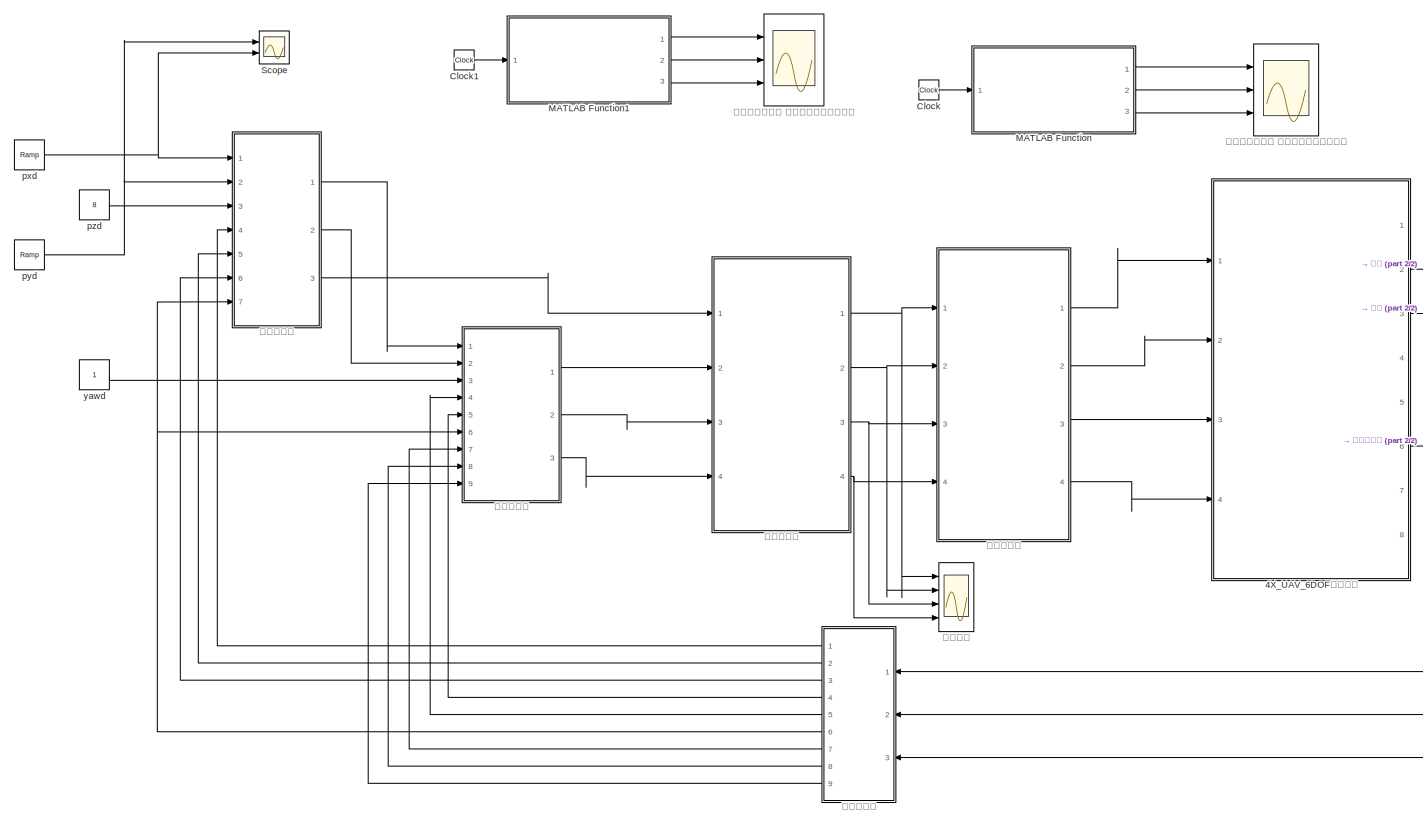
[diagram: root canvas - part 1/2, most of the canvas]
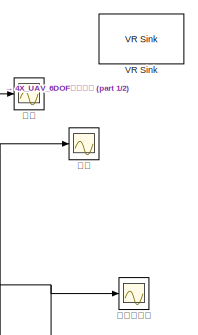
[diagram: root canvas - part 2/2, middle right region]
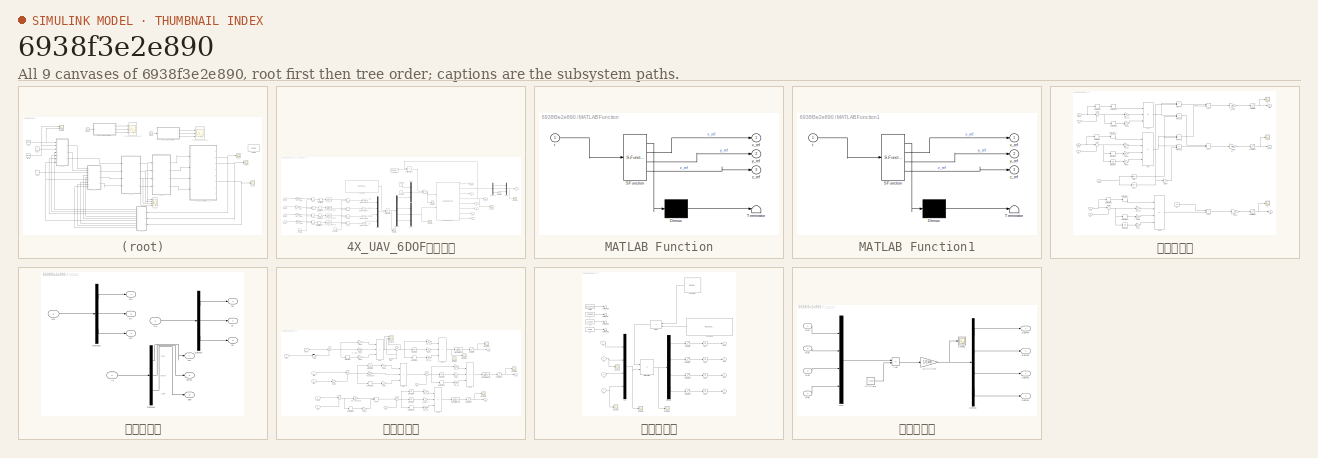
[diagram: thumbnail index - all 9 canvases of the model, root first then tree order]
MODEL slx_6938f3e2e890
KIND model
CONFIG AbsTol = auto
CONFIG EnableMultiTasking = off
CONFIG FixedStep = 0.01
CONFIG MaxStep = auto
CONFIG MinStep = auto
CONFIG RelTol = 1e-3
CONFIG SampleTimeConstraint = Unconstrained
CONFIG SolverName = FixedStepAuto
CONFIG StartTime = 0.0
CONFIG StopTime = 10.0
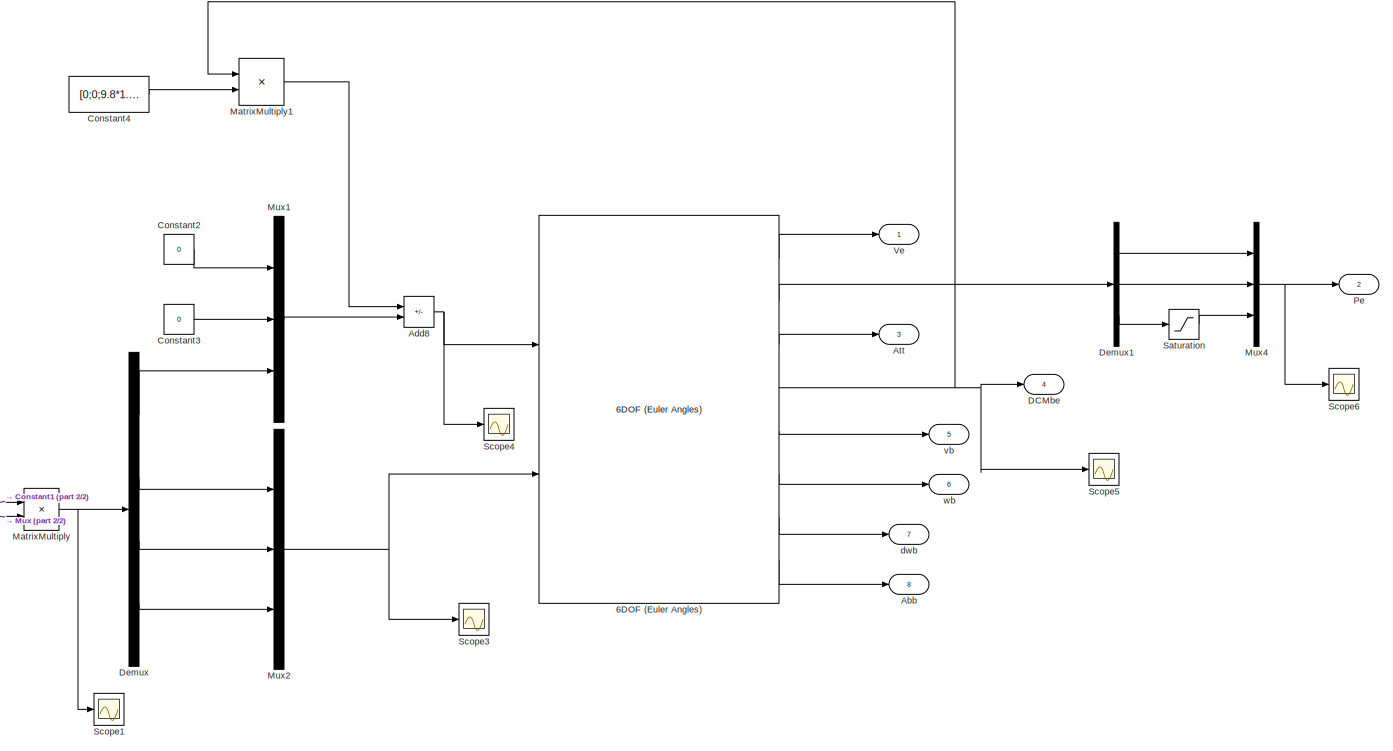
[diagram: 4X_UAV_6DOF模型解算 - part 1/2, right side, full height]
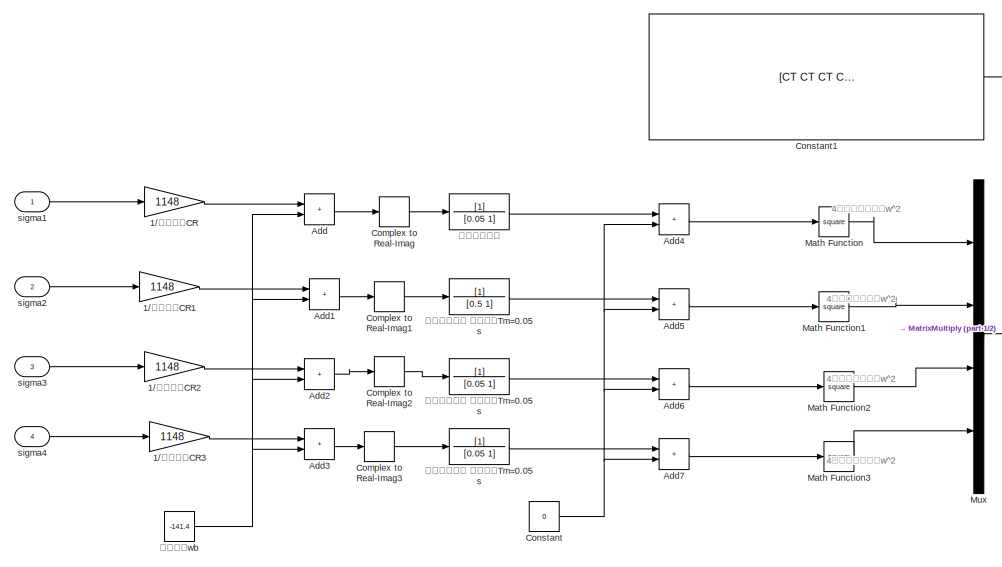
[diagram: 4X_UAV_6DOF模型解算 - part 2/2, middle left region]
BLOCK [SubSystem] 4X_UAV_6DOF模型解算
  Ports = [4, 8]
  RequestExecContextInheritance = off
BLOCK [Gain] 4X_UAV_6DOF模型解算/1//油门参数CR
  Gain = 1148
BLOCK [Gain] 4X_UAV_6DOF模型解算/1//油门参数CR1
  Gain = 1148
BLOCK [Gain] 4X_UAV_6DOF模型解算/1//油门参数CR2
  Gain = 1148
BLOCK [Gain] 4X_UAV_6DOF模型解算/1//油门参数CR3
  Gain = 1148
BLOCK [Reference] 4X_UAV_6DOF模型解算/6DOF (Euler Angles)  REF=shared6dof/6DOF (Euler Angles)
  Ports = [2, 8]
  SourceBlock = shared6dof/6DOF (Euler Angles)
  SourceProductBaseCode = AE,PW,DR,MT,VE
  SourceType = 6DOF EoM (Body Axis)
BLOCK [Outport] 4X_UAV_6DOF模型解算/Abb
  Port = 8
BLOCK [Sum] 4X_UAV_6DOF模型解算/Add
  AccumDataTypeStr = double
  IconShape = rectangular
  OutDataTypeStr = double
  Ports = [2, 1]
BLOCK [Sum] 4X_UAV_6DOF模型解算/Add1
  AccumDataTypeStr = double
  IconShape = rectangular
  OutDataTypeStr = double
  Ports = [2, 1]
BLOCK [Sum] 4X_UAV_6DOF模型解算/Add2
  AccumDataTypeStr = double
  IconShape = rectangular
  OutDataTypeStr = double
  Ports = [2, 1]
BLOCK [Sum] 4X_UAV_6DOF模型解算/Add3
  AccumDataTypeStr = double
  IconShape = rectangular
  OutDataTypeStr = double
  Ports = [2, 1]
BLOCK [Sum] 4X_UAV_6DOF模型解算/Add4
  IconShape = rectangular
  Ports = [2, 1]
BLOCK [Sum] 4X_UAV_6DOF模型解算/Add5
  IconShape = rectangular
  Ports = [2, 1]
BLOCK [Sum] 4X_UAV_6DOF模型解算/Add6
  IconShape = rectangular
  Ports = [2, 1]
BLOCK [Sum] 4X_UAV_6DOF模型解算/Add7
  IconShape = rectangular
  Ports = [2, 1]
BLOCK [Sum] 4X_UAV_6DOF模型解算/Add8
  IconShape = rectangular
  Inputs = -+
  Ports = [2, 1]
BLOCK [Outport] 4X_UAV_6DOF模型解算/Att
  Port = 3
BLOCK [ComplexToRealImag] 4X_UAV_6DOF模型解算/Complex to Real-Imag
  Output = Real
  Ports = [1, 1]
BLOCK [ComplexToRealImag] 4X_UAV_6DOF模型解算/Complex to Real-Imag1
  Output = Real
  Ports = [1, 1]
BLOCK [ComplexToRealImag] 4X_UAV_6DOF模型解算/Complex to Real-Imag2
  Output = Real
  Ports = [1, 1]
BLOCK [ComplexToRealImag] 4X_UAV_6DOF模型解算/Complex to Real-Imag3
  Output = Real
  Ports = [1, 1]
BLOCK [Constant] 4X_UAV_6DOF模型解算/Constant
  Value = 0
BLOCK [Constant] 4X_UAV_6DOF模型解算/Constant1
  Value = [CT CT CT CT;sqrt22*d*CT sqrt22*d*CT -sqrt22*d*CT -sqrt22*d*CT;sqrt22*d*CT -sqrt22*d*CT -sqrt22*d*CT sqrt22*d*CT;CM -CM CM -CM]
BLOCK [Constant] 4X_UAV_6DOF模型解算/Constant2
  Value = 0
BLOCK [Constant] 4X_UAV_6DOF模型解算/Constant3
  Value = 0
BLOCK [Constant] 4X_UAV_6DOF模型解算/Constant4
  Value = [0;0;9.8*1.4]
BLOCK [Outport] 4X_UAV_6DOF模型解算/DCMbe
  Port = 4
BLOCK [Demux] 4X_UAV_6DOF模型解算/Demux
  Ports = [1, 4]
BLOCK [Demux] 4X_UAV_6DOF模型解算/Demux1
  Outputs = 3
  Ports = [1, 3]
BLOCK [Math] 4X_UAV_6DOF模型解算/Math Function
  Operator = square
  Ports = [1, 1]
BLOCK [Math] 4X_UAV_6DOF模型解算/Math Function1
  Operator = square
  Ports = [1, 1]
BLOCK [Math] 4X_UAV_6DOF模型解算/Math Function2
  Operator = square
  Ports = [1, 1]
BLOCK [Math] 4X_UAV_6DOF模型解算/Math Function3
  Operator = square
  Ports = [1, 1]
BLOCK [Product] 4X_UAV_6DOF模型解算/MatrixMultiply
  Multiplication = Matrix(*)
  Ports = [2, 1]
BLOCK [Product] 4X_UAV_6DOF模型解算/MatrixMultiply1
  Multiplication = Matrix(*)
  Ports = [2, 1]
BLOCK [Mux] 4X_UAV_6DOF模型解算/Mux
  DisplayOption = bar
  Ports = [4, 1]
BLOCK [Mux] 4X_UAV_6DOF模型解算/Mux1
  DisplayOption = bar
  Inputs = 3
  Ports = [3, 1]
BLOCK [Mux] 4X_UAV_6DOF模型解算/Mux2
  DisplayOption = bar
  Inputs = 3
  Ports = [3, 1]
BLOCK [Mux] 4X_UAV_6DOF模型解算/Mux4
  DisplayOption = bar
  Inputs = 3
  Ports = [3, 1]
BLOCK [Outport] 4X_UAV_6DOF模型解算/Pe
  Port = 2
BLOCK [Saturate] 4X_UAV_6DOF模型解算/Saturation
BLOCK [Scope] 4X_UAV_6DOF模型解算/Scope1
  Floating = off
  NumInputPorts = 1
  Ports = [1]
  ScopeSpecificationString = Simulink.scopes.TimeScopeBlockCfg('CurrentConfiguration', extmgr.ConfigurationSet(extmgr.Configuration('Core','General UI',true),extmgr.Configuration('Core','Source UI',true),extmgr.Configuration('Sources','WiredSimulink',true,'DataLoggingVariableName','ScopeData13'),extmgr.Configuration('Visuals','Time Domain',true,'SerializedDisplays',{struct('MinYLimReal','-0.15001','MaxYLimReal','0.99855','YLa...<+1419ch>
BLOCK [Scope] 4X_UAV_6DOF模型解算/Scope3
  Floating = off
  NumInputPorts = 1
  Ports = [1]
  ScopeSpecificationString = Simulink.scopes.TimeScopeBlockCfg('CurrentConfiguration', extmgr.ConfigurationSet(extmgr.Configuration('Core','General UI',true),extmgr.Configuration('Core','Source UI',true),extmgr.Configuration('Sources','WiredSimulink',true,'DataLoggingVariableName','ScopeData14'),extmgr.Configuration('Visuals','Time Domain',true,'SerializedDisplays',{struct('MinYLimReal','-0.03954','MaxYLimReal','0.00439','YLa...<+1387ch>
BLOCK [Scope] 4X_UAV_6DOF模型解算/Scope4
  Floating = off
  NumInputPorts = 1
  Ports = [1]
  ScopeSpecificationString = Simulink.scopes.TimeScopeBlockCfg('CurrentConfiguration', extmgr.ConfigurationSet(extmgr.Configuration('Core','General UI',true),extmgr.Configuration('Core','Source UI',true),extmgr.Configuration('Sources','WiredSimulink',true,'DataLoggingVariableName','ScopeData15'),extmgr.Configuration('Visuals','Time Domain',true,'SerializedDisplays',{struct('MinYLimReal','-15.88455','MaxYLimReal','12.38895','Y...<+1390ch>
BLOCK [Scope] 4X_UAV_6DOF模型解算/Scope5
  Floating = off
  NumInputPorts = 1
  Ports = [1]
  ScopeSpecificationString = Simulink.scopes.TimeScopeBlockCfg('CurrentConfiguration', extmgr.ConfigurationSet(extmgr.Configuration('Core','General UI',true),extmgr.Configuration('Core','Source UI',true),extmgr.Configuration('Sources','WiredSimulink',true,'DataLoggingVariableName','ScopeData16'),extmgr.Configuration('Visuals','Time Domain',true,'SerializedDisplays',{struct('MinYLimReal','-0.90902','MaxYLimReal','1.21211','YLa...<+1395ch>
BLOCK [Scope] 4X_UAV_6DOF模型解算/Scope6
  Floating = off
  NumInputPorts = 1
  Ports = [1]
  ScopeSpecificationString = Simulink.scopes.TimeScopeBlockCfg('CurrentConfiguration', extmgr.ConfigurationSet(extmgr.Configuration('Core','General UI',true),extmgr.Configuration('Core','Source UI',true),extmgr.Configuration('Sources','WiredSimulink',true,'DataLoggingVariableName','ScopeData17'),extmgr.Configuration('Visuals','Time Domain',true,'SerializedDisplays',{struct('MinYLimReal','-13.04621','MaxYLimReal','14.22227','Y...<+1402ch>
BLOCK [Outport] 4X_UAV_6DOF模型解算/Ve
BLOCK [Outport] 4X_UAV_6DOF模型解算/dwb
  Port = 7
BLOCK [Inport] 4X_UAV_6DOF模型解算/sigma1
  SignalType = complex
BLOCK [Inport] 4X_UAV_6DOF模型解算/sigma2
  Port = 2
  SignalType = complex
BLOCK [Inport] 4X_UAV_6DOF模型解算/sigma3
  Port = 3
  SignalType = complex
BLOCK [Inport] 4X_UAV_6DOF模型解算/sigma4
  Port = 4
  SignalType = complex
BLOCK [Outport] 4X_UAV_6DOF模型解算/vb
  Port = 5
BLOCK [Outport] 4X_UAV_6DOF模型解算/wb
  Port = 6
BLOCK [Constant] 4X_UAV_6DOF模型解算/油门参数wb
  Value = -141.4
BLOCK [TransferFcn] 4X_UAV_6DOF模型解算/电机动态响应
  Denominator = [0.05 1]
BLOCK [TransferFcn] 4X_UAV_6DOF模型解算/电机动态响应 时间常数Tm=0.05s
  Denominator = [0.05 1]
BLOCK [TransferFcn] 4X_UAV_6DOF模型解算/电机动态响应 时间常数Tm=0.05s 
  Denominator = [0.05 1]
BLOCK [Clock] Clock
BLOCK [Clock] Clock1
BLOCK [SubSystem] MATLAB Function
  ErrorFcn = Stateflow.Translate.translate
  PermitHierarchicalResolution = ExplicitOnly
  Ports = [1, 3]
  RequestExecContextInheritance = off
  SFBlockType = MATLAB Function
  TreatAsAtomicUnit = on
BLOCK [Demux] MATLAB Function/ Demux 
  Outputs = 1
  Ports = [1, 1]
BLOCK [S-Function] MATLAB Function/ SFunction 
  EnableBusSupport = on
  FunctionName = sf_sfun
  PortCounts = [1 4]
  Ports = [1, 4]
  SFcnIsStateOwnerBlock = off
  SFunctionDeploymentMode = off
  Tag = Stateflow S-Function 2
BLOCK [Terminator] MATLAB Function/ Terminator 
BLOCK [Inport] MATLAB Function/t
BLOCK [Outport] MATLAB Function/x_ref
BLOCK [Outport] MATLAB Function/y_ref
  Port = 2
BLOCK [Outport] MATLAB Function/z_ref
  Port = 3
BLOCK [SubSystem] MATLAB Function1
  ErrorFcn = Stateflow.Translate.translate
  PermitHierarchicalResolution = ExplicitOnly
  Ports = [1, 3]
  RequestExecContextInheritance = off
  SFBlockType = MATLAB Function
  TreatAsAtomicUnit = on
BLOCK [Demux] MATLAB Function1/ Demux 
  Outputs = 1
  Ports = [1, 1]
BLOCK [S-Function] MATLAB Function1/ SFunction 
  EnableBusSupport = on
  FunctionName = sf_sfun
  PortCounts = [1 4]
  Ports = [1, 4]
  SFcnIsStateOwnerBlock = off
  SFunctionDeploymentMode = off
  Tag = Stateflow S-Function 1
BLOCK [Terminator] MATLAB Function1/ Terminator 
BLOCK [Inport] MATLAB Function1/t
BLOCK [Outport] MATLAB Function1/x_ref
BLOCK [Outport] MATLAB Function1/y_ref
  Port = 2
BLOCK [Outport] MATLAB Function1/z_ref
  Port = 3
BLOCK [Scope] Scope
  Floating = off
  NumInputPorts = 2
  Ports = [2]
  ScopeSpecificationString = Simulink.scopes.TimeScopeBlockCfg('CurrentConfiguration', extmgr.ConfigurationSet(extmgr.Configuration('Core','General UI',true),extmgr.Configuration('Core','Source UI',true),extmgr.Configuration('Sources','WiredSimulink',true,'DataLoggingVariableName','ScopeData1'),extmgr.Configuration('Visuals','Time Domain',true,'SerializedDisplays',{struct('MinYLimReal','-5.00000','MaxYLimReal','45.00000','YLa...<+1407ch>
BLOCK [Reference] VR Sink  REF=vrlib/VR Sink
  InstantiateOnLoad = on
  Ports = []
  SourceBlock = vrlib/VR Sink
  SourceProductBaseCode = SL
  SourceType = Virtual Reality Sink
BLOCK [Reference] pxd  REF=simulink/Sources/Ramp
  Ports = [0, 1]
  SourceBlock = simulink/Sources/Ramp
  SourceProductBaseCode = SL
  SourceType = Ramp
BLOCK [Reference] pyd  REF=simulink/Sources/Ramp
  Ports = [0, 1]
  SourceBlock = simulink/Sources/Ramp
  SourceProductBaseCode = SL
  SourceType = Ramp
BLOCK [Constant] pzd
  Value = 8
BLOCK [Constant] yawd
BLOCK [Scope] 仿真一：多旋翼 以螺旋上升的方式起飞
  Floating = off
  NumInputPorts = 3
  Ports = [3]
  ScopeSpecificationString = Simulink.scopes.TimeScopeBlockCfg('CurrentConfiguration', extmgr.ConfigurationSet(extmgr.Configuration('Core','General UI',true),extmgr.Configuration('Core','Source UI',true),extmgr.Configuration('Sources','WiredSimulink',true,'DataLoggingVariableName','ScopeData2'),extmgr.Configuration('Visuals','Time Domain',true,'SerializedDisplays',{struct('MinYLimReal','-6.24999','MaxYLimReal','6.25','YLabelR...<+1451ch>
BLOCK [Scope] 仿真二：多旋翼 以圆形上升的方式起飞
  Floating = off
  NumInputPorts = 3
  Ports = [3]
  ScopeSpecificationString = Simulink.scopes.TimeScopeBlockCfg('CurrentConfiguration', extmgr.ConfigurationSet(extmgr.Configuration('Core','General UI',true),extmgr.Configuration('Core','Source UI',true),extmgr.Configuration('Sources','WiredSimulink',true,'DataLoggingVariableName','ScopeData3'),extmgr.Configuration('Visuals','Time Domain',true,'SerializedDisplays',{struct('MinYLimReal','-8.12457','MaxYLimReal','23.12495','YLa...<+9862ch>
BLOCK [Scope] 位置
  Floating = off
  NumInputPorts = 1
  Ports = [1]
  ScopeSpecificationString = Simulink.scopes.TimeScopeBlockCfg('CurrentConfiguration', extmgr.ConfigurationSet(extmgr.Configuration('Core','General UI',true),extmgr.Configuration('Core','Source UI',true),extmgr.Configuration('Sources','WiredSimulink',true,'DataLoggingVariableName','ScopeData18'),extmgr.Configuration('Visuals','Time Domain',true,'SerializedDisplays',{struct('MinYLimReal','-6.3696','MaxYLimReal','52.32644','YLa...<+1461ch>
BLOCK [SubSystem] 位置控制器
  Ports = [7, 3]
  RequestExecContextInheritance = off
BLOCK [Sum] 位置控制器/Add
  IconShape = rectangular
  Inputs = -+++
  Ports = [4, 1]
BLOCK [Sum] 位置控制器/Add1
  IconShape = rectangular
  Inputs = -++
  Ports = [3, 1]
BLOCK [Sum] 位置控制器/Add2
  IconShape = rectangular
  Ports = [2, 1]
BLOCK [Sum] 位置控制器/Add3
  IconShape = rectangular
  Ports = [2, 1]
BLOCK [Sum] 位置控制器/Add4
  IconShape = rectangular
  Inputs = -+++
  Ports = [4, 1]
BLOCK [Sum] 位置控制器/Add5
  IconShape = rectangular
  Ports = [2, 1]
BLOCK [Trigonometry] 位置控制器/Cos
  Operator = cos
  Ports = [1, 1]
BLOCK [Derivative] 位置控制器/Derivative
BLOCK [Derivative] 位置控制器/Derivative1
BLOCK [Derivative] 位置控制器/Derivative2
BLOCK [Derivative] 位置控制器/Derivative3
BLOCK [Derivative] 位置控制器/Derivative4
BLOCK [Derivative] 位置控制器/Derivative5
BLOCK [Derivative] 位置控制器/Derivative6
BLOCK [Derivative] 位置控制器/Derivative7
BLOCK [Derivative] 位置控制器/Derivative8
BLOCK [Outport] 位置控制器/Fd
  Port = 3
BLOCK [Gain] 位置控制器/Gain
  Gain = 1/9.8
BLOCK [Gain] 位置控制器/Gain1
  Gain = 4
BLOCK [Gain] 位置控制器/Gain2
  Gain = 0
BLOCK [Gain] 位置控制器/Gain3
  Gain = 4
BLOCK [Gain] 位置控制器/Gain4
  Gain = -1
BLOCK [Gain] 位置控制器/Gain5
  Gain = 1/9.8
BLOCK [Gain] 位置控制器/Gain6
  Gain = 10
BLOCK [Integrator] 位置控制器/Integrator
  Ports = [1, 1]
BLOCK [Integrator] 位置控制器/Integrator1
  Ports = [1, 1]
BLOCK [Gain] 位置控制器/Ki_pz
  Gain = 0.3
BLOCK [Gain] 位置控制器/Kp_px
  Gain = 0.3
BLOCK [Gain] 位置控制器/Kp_py
  Gain = 0.3
BLOCK [Gain] 位置控制器/Kp_pz
  Gain = 5
BLOCK [Product] 位置控制器/Product
  Ports = [2, 1]
BLOCK [Product] 位置控制器/Product1
  Ports = [2, 1]
BLOCK [Product] 位置控制器/Product2
  Ports = [2, 1]
BLOCK [Product] 位置控制器/Product3
  Ports = [2, 1]
BLOCK [Saturate] 位置控制器/Saturation
BLOCK [Saturate] 位置控制器/Saturation1
BLOCK [Saturate] 位置控制器/Saturation2
BLOCK [Trigonometry] 位置控制器/Sin
  Ports = [1, 1]
BLOCK [Sum] 位置控制器/Sum
  Inputs = |+-
  Ports = [2, 1]
BLOCK [Sum] 位置控制器/Sum1
  Inputs = |+-
  Ports = [2, 1]
BLOCK [Sum] 位置控制器/Sum2
  Inputs = |+-
  Ports = [2, 1]
BLOCK [Constant] 位置控制器/g
  Value = 9.8
BLOCK [Gain] 位置控制器/mass
  Gain = 1.4
BLOCK [Outport] 位置控制器/pitchd
BLOCK [Inport] 位置控制器/px
  Port = 4
BLOCK [Inport] 位置控制器/pxd
BLOCK [Inport] 位置控制器/py
  Port = 5
BLOCK [Inport] 位置控制器/pyd
  Port = 2
BLOCK [Inport] 位置控制器/pz
  Port = 6
BLOCK [Inport] 位置控制器/pzd
  Port = 3
BLOCK [Outport] 位置控制器/rolld
  Port = 2
BLOCK [Scope] 位置控制器/x
  Floating = off
  NumInputPorts = 1
  Ports = [1]
  ScopeSpecificationString = Simulink.scopes.TimeScopeBlockCfg('CurrentConfiguration', extmgr.ConfigurationSet(extmgr.Configuration('Core','General UI',true),extmgr.Configuration('Core','Source UI',true),extmgr.Configuration('Sources','WiredSimulink',true),extmgr.Configuration('Visuals','Time Domain',true,'SerializedDisplays',{struct('MinYLimReal','-1.00000','MaxYLimReal','1.00000','YLabelReal','','MinYLimMag','0.00000','MaxY...<+1365ch>
BLOCK [Scope] 位置控制器/y
  Floating = off
  NumInputPorts = 1
  Ports = [1]
  ScopeSpecificationString = Simulink.scopes.TimeScopeBlockCfg('CurrentConfiguration', extmgr.ConfigurationSet(extmgr.Configuration('Core','General UI',true),extmgr.Configuration('Core','Source UI',true),extmgr.Configuration('Sources','WiredSimulink',true,'DataLoggingVariableName','ScopeData1'),extmgr.Configuration('Visuals','Time Domain',true,'SerializedDisplays',{struct('MinYLimReal','-1.00000','MaxYLimReal','1.00000','YLab...<+1407ch>
BLOCK [Inport] 位置控制器/yaw
  Port = 7
BLOCK [Scope] 位置控制器/z
  Floating = off
  NumInputPorts = 1
  Ports = [1]
  ScopeSpecificationString = Simulink.scopes.TimeScopeBlockCfg('CurrentConfiguration', extmgr.ConfigurationSet(extmgr.Configuration('Core','General UI',true),extmgr.Configuration('Core','Source UI',true),extmgr.Configuration('Sources','WiredSimulink',true,'DataLoggingVariableName','ScopeData2'),extmgr.Configuration('Visuals','Time Domain',true,'SerializedDisplays',{struct('MinYLimReal','0.4','MaxYLimReal','0.6','YLabelReal','...<+1370ch>
BLOCK [SubSystem] 信号分解器
  Ports = [3, 9]
  RequestExecContextInheritance = off
BLOCK [Inport] 信号分解器/Alt
  Port = 2
BLOCK [Demux] 信号分解器/Demux
  Outputs = 3
  Ports = [1, 3]
BLOCK [Demux] 信号分解器/Demux1
  Outputs = 3
  Ports = [1, 3]
BLOCK [Demux] 信号分解器/Demux2
  Outputs = 3
  Ports = [1, 3]
BLOCK [Inport] 信号分解器/Pe
BLOCK [Outport] 信号分解器/pitch
  Port = 5
BLOCK [Outport] 信号分解器/px
BLOCK [Outport] 信号分解器/py
  Port = 2
BLOCK [Outport] 信号分解器/pz
  Port = 3
BLOCK [Outport] 信号分解器/roll
  Port = 4
BLOCK [Inport] 信号分解器/wb
  Port = 3
BLOCK [Outport] 信号分解器/wx
  Port = 7
BLOCK [Outport] 信号分解器/wy
  Port = 8
BLOCK [Outport] 信号分解器/wz
  Port = 9
BLOCK [Outport] 信号分解器/yaw
  Port = 6
BLOCK [Scope] 姿态
  Floating = off
  NumInputPorts = 1
  Ports = [1]
  ScopeSpecificationString = Simulink.scopes.TimeScopeBlockCfg('CurrentConfiguration', extmgr.ConfigurationSet(extmgr.Configuration('Core','General UI',true),extmgr.Configuration('Core','Source UI',true),extmgr.Configuration('Sources','WiredSimulink',true,'DataLoggingVariableName','ScopeData19'),extmgr.Configuration('Visuals','Time Domain',true,'SerializedDisplays',{struct('MinYLimReal','-3.92312','MaxYLimReal','3.92429','YLa...<+1423ch>
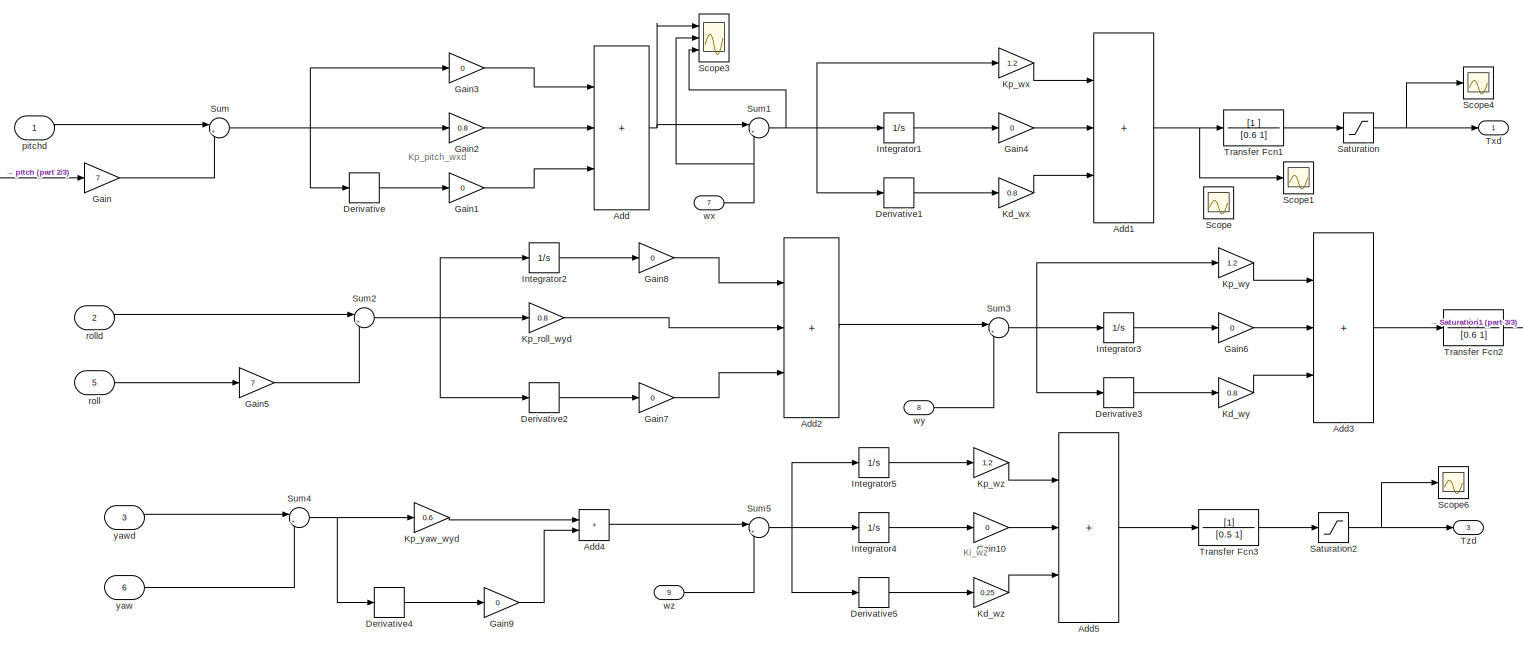
[diagram: 姿态控制器 - part 1/3, most of the canvas]
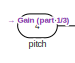
[diagram: 姿态控制器 - part 2/3, top left region]
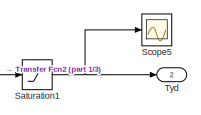
[diagram: 姿态控制器 - part 3/3, middle right region]
BLOCK [SubSystem] 姿态控制器
  Ports = [9, 3]
  RequestExecContextInheritance = off
BLOCK [Sum] 姿态控制器/Add
  IconShape = rectangular
  Inputs = +++
  Ports = [3, 1]
BLOCK [Sum] 姿态控制器/Add1
  IconShape = rectangular
  Inputs = +++
  Ports = [3, 1]
BLOCK [Sum] 姿态控制器/Add2
  IconShape = rectangular
  Inputs = +++
  Ports = [3, 1]
BLOCK [Sum] 姿态控制器/Add3
  IconShape = rectangular
  Inputs = +++
  Ports = [3, 1]
BLOCK [Sum] 姿态控制器/Add4
  IconShape = rectangular
  Ports = [2, 1]
BLOCK [Sum] 姿态控制器/Add5
  IconShape = rectangular
  Inputs = +++
  Ports = [3, 1]
BLOCK [Derivative] 姿态控制器/Derivative
BLOCK [Derivative] 姿态控制器/Derivative1
BLOCK [Derivative] 姿态控制器/Derivative2
BLOCK [Derivative] 姿态控制器/Derivative3
BLOCK [Derivative] 姿态控制器/Derivative4
BLOCK [Derivative] 姿态控制器/Derivative5
BLOCK [Gain] 姿态控制器/Gain
  Gain = 7
BLOCK [Gain] 姿态控制器/Gain1
  Gain = 0
BLOCK [Gain] 姿态控制器/Gain10
  Gain = 0
BLOCK [Gain] 姿态控制器/Gain2
  Gain = 0.8
BLOCK [Gain] 姿态控制器/Gain3
  Gain = 0
BLOCK [Gain] 姿态控制器/Gain4
  Gain = 0
BLOCK [Gain] 姿态控制器/Gain5
  Gain = 7
BLOCK [Gain] 姿态控制器/Gain6
  Gain = 0
BLOCK [Gain] 姿态控制器/Gain7
  Gain = 0
BLOCK [Gain] 姿态控制器/Gain8
  Gain = 0
BLOCK [Gain] 姿态控制器/Gain9
  Gain = 0
BLOCK [Integrator] 姿态控制器/Integrator1
  Ports = [1, 1]
BLOCK [Integrator] 姿态控制器/Integrator2
  Ports = [1, 1]
BLOCK [Integrator] 姿态控制器/Integrator3
  Ports = [1, 1]
BLOCK [Integrator] 姿态控制器/Integrator4
  Ports = [1, 1]
BLOCK [Integrator] 姿态控制器/Integrator5
  Ports = [1, 1]
BLOCK [Gain] 姿态控制器/Kd_wx
  Gain = 0.8
BLOCK [Gain] 姿态控制器/Kd_wy
  Gain = 0.8
BLOCK [Gain] 姿态控制器/Kd_wz
  Gain = 0.25
BLOCK [Gain] 姿态控制器/Kp_roll_wyd
  Gain = 0.8
BLOCK [Gain] 姿态控制器/Kp_wx
  Gain = 1.2
BLOCK [Gain] 姿态控制器/Kp_wy
  Gain = 1.2
BLOCK [Gain] 姿态控制器/Kp_wz
  Gain = 1.2
BLOCK [Gain] 姿态控制器/Kp_yaw_wyd
  Gain = 0.6
BLOCK [Saturate] 姿态控制器/Saturation
BLOCK [Saturate] 姿态控制器/Saturation1
BLOCK [Saturate] 姿态控制器/Saturation2
BLOCK [Scope] 姿态控制器/Scope
  Floating = off
  NumInputPorts = 1
  Ports = [1]
  ScopeSpecificationString = Simulink.scopes.TimeScopeBlockCfg('CurrentConfiguration', extmgr.ConfigurationSet(extmgr.Configuration('Core','General UI',true),extmgr.Configuration('Core','Source UI',true),extmgr.Configuration('Sources','WiredSimulink',true,'DataLoggingVariableName','ScopeData1'),extmgr.Configuration('Visuals','Time Domain',true),extmgr.Configuration('Tools','Plot Navigation',true),extmgr.Configuration('Tools',...<+40ch>
BLOCK [Scope] 姿态控制器/Scope1
  Floating = off
  NumInputPorts = 1
  Ports = [1]
  ScopeSpecificationString = Simulink.scopes.TimeScopeBlockCfg('CurrentConfiguration', extmgr.ConfigurationSet(extmgr.Configuration('Core','General UI',true),extmgr.Configuration('Core','Source UI',true),extmgr.Configuration('Sources','WiredSimulink',true,'DataLoggingVariableName','ScopeData2'),extmgr.Configuration('Visuals','Time Domain',true,'SerializedDisplays',{struct('MinYLimReal','-116.72208','MaxYLimReal','228.49149','...<+1377ch>
BLOCK [Scope] 姿态控制器/Scope3
  Floating = off
  NumInputPorts = 3
  Ports = [3]
  ScopeSpecificationString = Simulink.scopes.TimeScopeBlockCfg('CurrentConfiguration', extmgr.ConfigurationSet(extmgr.Configuration('Core','General UI',true),extmgr.Configuration('Core','Source UI',true),extmgr.Configuration('Sources','WiredSimulink',true,'DataLoggingVariableName','ScopeData4'),extmgr.Configuration('Visuals','Time Domain',true,'SerializedDisplays',{struct('MinYLimReal','-1.00000','MaxYLimReal','1.00000','YLab...<+1375ch>
BLOCK [Scope] 姿态控制器/Scope4
  Floating = off
  NumInputPorts = 1
  Ports = [1]
  ScopeSpecificationString = Simulink.scopes.TimeScopeBlockCfg('CurrentConfiguration', extmgr.ConfigurationSet(extmgr.Configuration('Core','General UI',true),extmgr.Configuration('Core','Source UI',true),extmgr.Configuration('Sources','WiredSimulink',true,'DataLoggingVariableName','ScopeData5'),extmgr.Configuration('Visuals','Time Domain',true,'SerializedDisplays',{struct('MinYLimReal','-1.00000','MaxYLimReal','1.00000','YLab...<+1369ch>
BLOCK [Scope] 姿态控制器/Scope5
  Floating = off
  NumInputPorts = 1
  Ports = [1]
  ScopeSpecificationString = Simulink.scopes.TimeScopeBlockCfg('CurrentConfiguration', extmgr.ConfigurationSet(extmgr.Configuration('Core','General UI',true),extmgr.Configuration('Core','Source UI',true),extmgr.Configuration('Sources','WiredSimulink',true,'DataLoggingVariableName','ScopeData6'),extmgr.Configuration('Visuals','Time Domain',true,'SerializedDisplays',{struct('MinYLimReal','-1.00000','MaxYLimReal','1.00000','YLab...<+1370ch>
BLOCK [Scope] 姿态控制器/Scope6
  Floating = off
  NumInputPorts = 1
  Ports = [1]
  ScopeSpecificationString = Simulink.scopes.TimeScopeBlockCfg('CurrentConfiguration', extmgr.ConfigurationSet(extmgr.Configuration('Core','General UI',true),extmgr.Configuration('Core','Source UI',true),extmgr.Configuration('Sources','WiredSimulink',true,'DataLoggingVariableName','ScopeData7'),extmgr.Configuration('Visuals','Time Domain',true,'SerializedDisplays',{struct('MinYLimReal','-1.00000','MaxYLimReal','1.00000','YLab...<+1370ch>
BLOCK [Sum] 姿态控制器/Sum
  Inputs = |+-
  Ports = [2, 1]
BLOCK [Sum] 姿态控制器/Sum1
  Inputs = |+-
  Ports = [2, 1]
BLOCK [Sum] 姿态控制器/Sum2
  Inputs = |+-
  Ports = [2, 1]
BLOCK [Sum] 姿态控制器/Sum3
  Inputs = |+-
  Ports = [2, 1]
BLOCK [Sum] 姿态控制器/Sum4
  Inputs = |+-
  Ports = [2, 1]
BLOCK [Sum] 姿态控制器/Sum5
  Inputs = |+-
  Ports = [2, 1]
BLOCK [TransferFcn] 姿态控制器/Transfer Fcn1
  Denominator = [0.6 1]
  Numerator = [1 ]
BLOCK [TransferFcn] 姿态控制器/Transfer Fcn2
  Denominator = [0.6 1]
BLOCK [TransferFcn] 姿态控制器/Transfer Fcn3
  Denominator = [0.5 1]
BLOCK [Outport] 姿态控制器/Txd
BLOCK [Outport] 姿态控制器/Tyd
  Port = 2
BLOCK [Outport] 姿态控制器/Tzd
  Port = 3
BLOCK [Inport] 姿态控制器/pitch
  Port = 4
BLOCK [Inport] 姿态控制器/pitchd
BLOCK [Inport] 姿态控制器/roll
  Port = 5
BLOCK [Inport] 姿态控制器/rolld
  Port = 2
BLOCK [Inport] 姿态控制器/wx
  Port = 7
BLOCK [Inport] 姿态控制器/wy
  Port = 8
BLOCK [Inport] 姿态控制器/wz
  Port = 9
BLOCK [Inport] 姿态控制器/yaw
  Port = 6
BLOCK [Inport] 姿态控制器/yawd
  Port = 3
BLOCK [SubSystem] 控制分配器
  Ports = [4, 4]
  RequestExecContextInheritance = off
BLOCK [Constant] 控制分配器/CM
  Value = 1.779e-7
BLOCK [Constant] 控制分配器/CT
  Value = 1.105e-5
BLOCK [Constant] 控制分配器/Constant
  NameLocation = top
  Value = [1 0 0 0;0 1 0 0;0 0 1 0;0 0 0 1]
BLOCK [Constant] 控制分配器/Constant1
  NameLocation = top
  Value = [CT CT CT CT;sqrt22*d*CT sqrt22*d*CT -sqrt22*d*CT -sqrt22*d*CT;sqrt22*d*CT -sqrt22*d*CT -sqrt22*d*CT sqrt22*d*CT;CM -CM CM -CM]
BLOCK [Demux] 控制分配器/Demux
  Ports = [1, 4]
BLOCK [Product] 控制分配器/Divide
  Inputs = */
  Multiplication = Matrix(*)
  NameLocation = top
  Ports = [2, 1]
BLOCK [Inport] 控制分配器/Fd
BLOCK [Product] 控制分配器/MatrixMultiply
  Multiplication = Matrix(*)
  Ports = [2, 1]
  RndMeth = Nearest
BLOCK [Mux] 控制分配器/Mux
  DisplayOption = bar
  Ports = [4, 1]
BLOCK [Saturate] 控制分配器/Saturation
BLOCK [Saturate] 控制分配器/Saturation1
BLOCK [Saturate] 控制分配器/Saturation2
BLOCK [Saturate] 控制分配器/Saturation3
BLOCK [Scope] 控制分配器/Scope1
  Floating = off
  NumInputPorts = 1
  Ports = [1]
  ScopeSpecificationString = Simulink.scopes.TimeScopeBlockCfg('CurrentConfiguration', extmgr.ConfigurationSet(extmgr.Configuration('Core','General UI',true),extmgr.Configuration('Core','Source UI',true),extmgr.Configuration('Sources','WiredSimulink',true,'DataLoggingVariableName','ScopeData9'),extmgr.Configuration('Visuals','Time Domain',true,'SerializedDisplays',{struct('MinYLimReal','-1.00000','MaxYLimReal','1.00000','YLab...<+1379ch>
BLOCK [Scope] 控制分配器/Scope3
  Floating = off
  NumInputPorts = 1
  Ports = [1]
  ScopeSpecificationString = Simulink.scopes.TimeScopeBlockCfg('CurrentConfiguration', extmgr.ConfigurationSet(extmgr.Configuration('Core','General UI',true),extmgr.Configuration('Core','Source UI',true),extmgr.Configuration('Sources','WiredSimulink',true,'DataLoggingVariableName','ScopeData10'),extmgr.Configuration('Visuals','Time Domain',true,'SerializedDisplays',{struct('MinYLimReal','-1.00000','MaxYLimReal','1.00000','YLa...<+1433ch>
BLOCK [Scope] 控制分配器/Scope4
  Floating = off
  NumInputPorts = 1
  Ports = [1]
  ScopeSpecificationString = Simulink.scopes.TimeScopeBlockCfg('CurrentConfiguration', extmgr.ConfigurationSet(extmgr.Configuration('Core','General UI',true),extmgr.Configuration('Core','Source UI',true),extmgr.Configuration('Sources','WiredSimulink',true,'DataLoggingVariableName','ScopeData11'),extmgr.Configuration('Visuals','Time Domain',true,'SerializedDisplays',{struct('MinYLimReal','-1.00000','MaxYLimReal','1.00000','YLa...<+1363ch>
BLOCK [Scope] 控制分配器/Scope5
  Floating = off
  NumInputPorts = 1
  Ports = [1]
  ScopeSpecificationString = Simulink.scopes.TimeScopeBlockCfg('CurrentConfiguration', extmgr.ConfigurationSet(extmgr.Configuration('Core','General UI',true),extmgr.Configuration('Core','Source UI',true),extmgr.Configuration('Sources','WiredSimulink',true,'DataLoggingVariableName','ScopeData12'),extmgr.Configuration('Visuals','Time Domain',true,'SerializedDisplays',{struct('MinYLimReal','-1.00000','MaxYLimReal','1.00000','YLa...<+1363ch>
BLOCK [Sqrt] 控制分配器/Sqrt
  OutputSignalType = complex
BLOCK [Sqrt] 控制分配器/Sqrt1
  OutputSignalType = complex
BLOCK [Sqrt] 控制分配器/Sqrt2
  OutputSignalType = complex
BLOCK [Sqrt] 控制分配器/Sqrt3
  OutputSignalType = complex
BLOCK [Terminator] 控制分配器/Terminator
BLOCK [Terminator] 控制分配器/Terminator1
BLOCK [Terminator] 控制分配器/Terminator2
BLOCK [Terminator] 控制分配器/Terminator3
BLOCK [Inport] 控制分配器/Txd
  Port = 2
BLOCK [Inport] 控制分配器/Tyd
  Port = 3
BLOCK [Inport] 控制分配器/Tzd
  Port = 4
BLOCK [Constant] 控制分配器/d
  Value = 0.225
BLOCK [Constant] 控制分配器/sqrt2//2
  Value = 0.70710676
BLOCK [Outport] 控制分配器/w1d
  SignalType = complex
BLOCK [Outport] 控制分配器/w2d
  Port = 2
  SignalType = complex
BLOCK [Outport] 控制分配器/w3d
  Port = 3
  SignalType = complex
BLOCK [Outport] 控制分配器/w4d
  Port = 4
  SignalType = complex
BLOCK [Scope] 控制模拟
  Floating = off
  NumInputPorts = 4
  Ports = [4]
  ScopeSpecificationString = Simulink.scopes.TimeScopeBlockCfg('CurrentConfiguration', extmgr.ConfigurationSet(extmgr.Configuration('Core','General UI',true),extmgr.Configuration('Core','Source UI',true),extmgr.Configuration('Sources','WiredSimulink',true,'DataLoggingVariableName','ScopeData3'),extmgr.Configuration('Visuals','Time Domain',true,'SerializedDisplays',{struct('MinYLimReal','-0.08839','MaxYLimReal','0.7955','YLabe...<+1515ch>
BLOCK [Scope] 机体角速度
  Floating = off
  NumInputPorts = 1
  Ports = [1]
  ScopeSpecificationString = Simulink.scopes.TimeScopeBlockCfg('CurrentConfiguration', extmgr.ConfigurationSet(extmgr.Configuration('Core','General UI',true),extmgr.Configuration('Core','Source UI',true),extmgr.Configuration('Sources','WiredSimulink',true,'DataLoggingVariableName','ScopeData20'),extmgr.Configuration('Visuals','Time Domain',true,'SerializedDisplays',{struct('MinYLimReal','-68.16001','MaxYLimReal','36.49086','Y...<+1466ch>
BLOCK [SubSystem] 电机控制器
  Ports = [4, 4]
  RequestExecContextInheritance = off
BLOCK [Gain] 电机控制器/1//油门参数CR
  Gain = 1/148
BLOCK [Sum] 电机控制器/Add
  IconShape = rectangular
  Inputs = +-
  Ports = [2, 1]
BLOCK [Demux] 电机控制器/Demux
  Ports = [1, 4]
BLOCK [Mux] 电机控制器/Mux
  DisplayOption = bar
  Ports = [4, 1]
BLOCK [Scope] 电机控制器/Scope1
  Floating = off
  NumInputPorts = 1
  Ports = [1]
  ScopeSpecificationString = Simulink.scopes.TimeScopeBlockCfg('CurrentConfiguration', extmgr.ConfigurationSet(extmgr.Configuration('Core','General UI',true),extmgr.Configuration('Core','Source UI',true),extmgr.Configuration('Sources','WiredSimulink',true,'DataLoggingVariableName','ScopeData8'),extmgr.Configuration('Visuals','Time Domain',true,'SerializedDisplays',{struct('MinYLimReal','0.85541','MaxYLimReal','1.05541','YLabe...<+1406ch>
BLOCK [Outport] 电机控制器/sigma1
BLOCK [Outport] 电机控制器/sigma2
  Port = 2
BLOCK [Outport] 电机控制器/sigma3
  Port = 3
BLOCK [Outport] 电机控制器/sigma4
  Port = 4
BLOCK [Inport] 电机控制器/w1d
  SignalType = complex
BLOCK [Inport] 电机控制器/w2d
  Port = 2
  SignalType = complex
BLOCK [Inport] 电机控制器/w3d
  Port = 3
  SignalType = complex
BLOCK [Inport] 电机控制器/w4d
  Port = 4
  SignalType = complex
BLOCK [Constant] 电机控制器/油门参数wb
  Value = -141.4
ANNOTATION 4X_UAV_6DOF模型解算: 4维向量电机转速w^2
ANNOTATION 位置控制器: 1/g
ANNOTATION 位置控制器: Kd_px
ANNOTATION 位置控制器: Kd_py
ANNOTATION 位置控制器: Kd_pz
ANNOTATION 信号分解器: pitch
ANNOTATION 信号分解器: roll
ANNOTATION 信号分解器: yaw
ANNOTATION 姿态控制器: Ki_wz
ANNOTATION 姿态控制器: Kp_pitch_wxd
LINE 4X_UAV_6DOF模型解算/1//油门参数CR1:1 -> 4X_UAV_6DOF模型解算/Add1:1
LINE 4X_UAV_6DOF模型解算/1//油门参数CR2:1 -> 4X_UAV_6DOF模型解算/Add2:1
LINE 4X_UAV_6DOF模型解算/1//油门参数CR3:1 -> 4X_UAV_6DOF模型解算/Add3:1
LINE 4X_UAV_6DOF模型解算/1//油门参数CR:1 -> 4X_UAV_6DOF模型解算/Add:1
LINE 4X_UAV_6DOF模型解算/6DOF (Euler Angles):1 -> 4X_UAV_6DOF模型解算/Ve:1
LINE 4X_UAV_6DOF模型解算/6DOF (Euler Angles):2 -> 4X_UAV_6DOF模型解算/Demux1:1
LINE 4X_UAV_6DOF模型解算/6DOF (Euler Angles):3 -> 4X_UAV_6DOF模型解算/Att:1
NET 4X_UAV_6DOF模型解算/6DOF (Euler Angles):4 -> 4X_UAV_6DOF模型解算/DCMbe:1, 4X_UAV_6DOF模型解算/MatrixMultiply1:1, 4X_UAV_6DOF模型解算/Scope5:1
LINE 4X_UAV_6DOF模型解算/6DOF (Euler Angles):5 -> 4X_UAV_6DOF模型解算/vb:1
LINE 4X_UAV_6DOF模型解算/6DOF (Euler Angles):6 -> 4X_UAV_6DOF模型解算/wb:1
LINE 4X_UAV_6DOF模型解算/6DOF (Euler Angles):7 -> 4X_UAV_6DOF模型解算/dwb:1
LINE 4X_UAV_6DOF模型解算/6DOF (Euler Angles):8 -> 4X_UAV_6DOF模型解算/Abb:1
LINE 4X_UAV_6DOF模型解算/Add1:1 -> 4X_UAV_6DOF模型解算/Complex to Real-Imag1:1
LINE 4X_UAV_6DOF模型解算/Add2:1 -> 4X_UAV_6DOF模型解算/Complex to Real-Imag2:1
LINE 4X_UAV_6DOF模型解算/Add3:1 -> 4X_UAV_6DOF模型解算/Complex to Real-Imag3:1
LINE 4X_UAV_6DOF模型解算/Add4:1 -> 4X_UAV_6DOF模型解算/Math Function:1
LINE 4X_UAV_6DOF模型解算/Add5:1 -> 4X_UAV_6DOF模型解算/Math Function1:1
LINE 4X_UAV_6DOF模型解算/Add6:1 -> 4X_UAV_6DOF模型解算/Math Function2:1
LINE 4X_UAV_6DOF模型解算/Add7:1 -> 4X_UAV_6DOF模型解算/Math Function3:1
NET 4X_UAV_6DOF模型解算/Add8:1 -> 4X_UAV_6DOF模型解算/6DOF (Euler Angles):1, 4X_UAV_6DOF模型解算/Scope4:1
LINE 4X_UAV_6DOF模型解算/Add:1 -> 4X_UAV_6DOF模型解算/Complex to Real-Imag:1
LINE 4X_UAV_6DOF模型解算/Complex to Real-Imag1:1 -> 4X_UAV_6DOF模型解算/电机动态响应 时间常数Tm=0.05s:1
LINE 4X_UAV_6DOF模型解算/Complex to Real-Imag2:1 -> 4X_UAV_6DOF模型解算/电机动态响应 时间常数Tm=0.05s :1
LINE 4X_UAV_6DOF模型解算/Complex to Real-Imag3:1 -> 4X_UAV_6DOF模型解算/电机动态响应 时间常数Tm=0.05s:1
LINE 4X_UAV_6DOF模型解算/Complex to Real-Imag:1 -> 4X_UAV_6DOF模型解算/电机动态响应:1
LINE 4X_UAV_6DOF模型解算/Constant1:1 -> 4X_UAV_6DOF模型解算/MatrixMultiply:1
LINE 4X_UAV_6DOF模型解算/Constant2:1 -> 4X_UAV_6DOF模型解算/Mux1:1
LINE 4X_UAV_6DOF模型解算/Constant3:1 -> 4X_UAV_6DOF模型解算/Mux1:2
LINE 4X_UAV_6DOF模型解算/Constant4:1 -> 4X_UAV_6DOF模型解算/MatrixMultiply1:2
NET 4X_UAV_6DOF模型解算/Constant:1 -> 4X_UAV_6DOF模型解算/Add4:2, 4X_UAV_6DOF模型解算/Add5:2, 4X_UAV_6DOF模型解算/Add6:2, 4X_UAV_6DOF模型解算/Add7:2
LINE 4X_UAV_6DOF模型解算/Demux1:1 -> 4X_UAV_6DOF模型解算/Mux4:1
LINE 4X_UAV_6DOF模型解算/Demux1:2 -> 4X_UAV_6DOF模型解算/Mux4:2
LINE 4X_UAV_6DOF模型解算/Demux1:3 -> 4X_UAV_6DOF模型解算/Saturation:1
LINE 4X_UAV_6DOF模型解算/Demux:1 -> 4X_UAV_6DOF模型解算/Mux1:3
LINE 4X_UAV_6DOF模型解算/Demux:2 -> 4X_UAV_6DOF模型解算/Mux2:1
LINE 4X_UAV_6DOF模型解算/Demux:3 -> 4X_UAV_6DOF模型解算/Mux2:2
LINE 4X_UAV_6DOF模型解算/Demux:4 -> 4X_UAV_6DOF模型解算/Mux2:3
LINE 4X_UAV_6DOF模型解算/Math Function1:1 -> 4X_UAV_6DOF模型解算/Mux:2
LINE 4X_UAV_6DOF模型解算/Math Function2:1 -> 4X_UAV_6DOF模型解算/Mux:3
LINE 4X_UAV_6DOF模型解算/Math Function3:1 -> 4X_UAV_6DOF模型解算/Mux:4
LINE 4X_UAV_6DOF模型解算/Math Function:1 -> 4X_UAV_6DOF模型解算/Mux:1
LINE 4X_UAV_6DOF模型解算/MatrixMultiply1:1 -> 4X_UAV_6DOF模型解算/Add8:1
NET 4X_UAV_6DOF模型解算/MatrixMultiply:1 -> 4X_UAV_6DOF模型解算/Demux:1, 4X_UAV_6DOF模型解算/Scope1:1
LINE 4X_UAV_6DOF模型解算/Mux1:1 -> 4X_UAV_6DOF模型解算/Add8:2
NET 4X_UAV_6DOF模型解算/Mux2:1 -> 4X_UAV_6DOF模型解算/6DOF (Euler Angles):2, 4X_UAV_6DOF模型解算/Scope3:1
NET 4X_UAV_6DOF模型解算/Mux4:1 -> 4X_UAV_6DOF模型解算/Pe:1, 4X_UAV_6DOF模型解算/Scope6:1
LINE 4X_UAV_6DOF模型解算/Mux:1 -> 4X_UAV_6DOF模型解算/MatrixMultiply:2
LINE 4X_UAV_6DOF模型解算/Saturation:1 -> 4X_UAV_6DOF模型解算/Mux4:3
LINE 4X_UAV_6DOF模型解算/sigma1:1 -> 4X_UAV_6DOF模型解算/1//油门参数CR:1
LINE 4X_UAV_6DOF模型解算/sigma2:1 -> 4X_UAV_6DOF模型解算/1//油门参数CR1:1
LINE 4X_UAV_6DOF模型解算/sigma3:1 -> 4X_UAV_6DOF模型解算/1//油门参数CR2:1
LINE 4X_UAV_6DOF模型解算/sigma4:1 -> 4X_UAV_6DOF模型解算/1//油门参数CR3:1
NET 4X_UAV_6DOF模型解算/油门参数wb:1 -> 4X_UAV_6DOF模型解算/Add1:2, 4X_UAV_6DOF模型解算/Add2:2, 4X_UAV_6DOF模型解算/Add3:2, 4X_UAV_6DOF模型解算/Add:2
LINE 4X_UAV_6DOF模型解算/电机动态响应 时间常数Tm=0.05s :1 -> 4X_UAV_6DOF模型解算/Add6:1
NET 4X_UAV_6DOF模型解算/电机动态响应 时间常数Tm=0.05s:1 -> 4X_UAV_6DOF模型解算/Add5:1, 4X_UAV_6DOF模型解算/Add7:1
LINE 4X_UAV_6DOF模型解算/电机动态响应:1 -> 4X_UAV_6DOF模型解算/Add4:1
NET 4X_UAV_6DOF模型解算:2 -> 位置:1, 信号分解器:1
NET 4X_UAV_6DOF模型解算:3 -> 信号分解器:2, 姿态:1
NET 4X_UAV_6DOF模型解算:6 -> 信号分解器:3, 机体角速度:1
LINE Clock1:1 -> MATLAB Function1:1
LINE Clock:1 -> MATLAB Function:1
LINE MATLAB Function1:1 -> 仿真二：多旋翼 以圆形上升的方式起飞:1
LINE MATLAB Function1:2 -> 仿真二：多旋翼 以圆形上升的方式起飞:2
LINE MATLAB Function1:3 -> 仿真二：多旋翼 以圆形上升的方式起飞:3
LINE MATLAB Function:1 -> 仿真一：多旋翼 以螺旋上升的方式起飞:1
LINE MATLAB Function:2 -> 仿真一：多旋翼 以螺旋上升的方式起飞:2
LINE MATLAB Function:3 -> 仿真一：多旋翼 以螺旋上升的方式起飞:3
NET pxd:1 -> Scope:2, 位置控制器:1
NET pyd:1 -> Scope:1, 位置控制器:2
LINE pzd:1 -> 位置控制器:3
LINE yawd:1 -> 姿态控制器:3
NET 位置控制器/Add1:1 -> 位置控制器/Product1:1, 位置控制器/Product:1
LINE 位置控制器/Add2:1 -> 位置控制器/Gain:1
LINE 位置控制器/Add3:1 -> 位置控制器/Gain5:1
LINE 位置控制器/Add4:1 -> 位置控制器/Add5:2
LINE 位置控制器/Add5:1 -> 位置控制器/mass:1
NET 位置控制器/Add:1 -> 位置控制器/Product2:1, 位置控制器/Product3:1
NET 位置控制器/Cos:1 -> 位置控制器/Gain4:1, 位置控制器/Product:2
LINE 位置控制器/Derivative1:1 -> 位置控制器/Add:1
LINE 位置控制器/Derivative2:1 -> 位置控制器/Gain1:1
LINE 位置控制器/Derivative3:1 -> 位置控制器/Derivative4:1
LINE 位置控制器/Derivative4:1 -> 位置控制器/Add1:1
LINE 位置控制器/Derivative5:1 -> 位置控制器/Gain3:1
LINE 位置控制器/Derivative6:1 -> 位置控制器/Derivative7:1
LINE 位置控制器/Derivative7:1 -> 位置控制器/Add4:1
LINE 位置控制器/Derivative8:1 -> 位置控制器/Gain6:1
LINE 位置控制器/Derivative:1 -> 位置控制器/Derivative1:1
LINE 位置控制器/Gain1:1 -> 位置控制器/Add:3
LINE 位置控制器/Gain2:1 -> 位置控制器/Add:4
LINE 位置控制器/Gain3:1 -> 位置控制器/Add1:3
LINE 位置控制器/Gain4:1 -> 位置控制器/Product3:2
LINE 位置控制器/Gain5:1 -> 位置控制器/Saturation1:1
LINE 位置控制器/Gain6:1 -> 位置控制器/Add4:3
LINE 位置控制器/Gain:1 -> 位置控制器/Saturation:1
LINE 位置控制器/Integrator1:1 -> 位置控制器/Ki_pz:1
LINE 位置控制器/Integrator:1 -> 位置控制器/Gain2:1
LINE 位置控制器/Ki_pz:1 -> 位置控制器/Add4:4
LINE 位置控制器/Kp_px:1 -> 位置控制器/Add1:2
LINE 位置控制器/Kp_py:1 -> 位置控制器/Add:2
LINE 位置控制器/Kp_pz:1 -> 位置控制器/Add4:2
LINE 位置控制器/Product1:1 -> 位置控制器/Add3:1
LINE 位置控制器/Product2:1 -> 位置控制器/Add2:2
LINE 位置控制器/Product3:1 -> 位置控制器/Add3:2
LINE 位置控制器/Product:1 -> 位置控制器/Add2:1
NET 位置控制器/Saturation1:1 -> 位置控制器/pitchd:1, 位置控制器/y:1
NET 位置控制器/Saturation2:1 -> 位置控制器/Fd:1, 位置控制器/z:1
NET 位置控制器/Saturation:1 -> 位置控制器/rolld:1, 位置控制器/x:1
NET 位置控制器/Sin:1 -> 位置控制器/Product1:2, 位置控制器/Product2:2
NET 位置控制器/Sum1:1 -> 位置控制器/Derivative5:1, 位置控制器/Kp_px:1
NET 位置控制器/Sum2:1 -> 位置控制器/Derivative8:1, 位置控制器/Integrator1:1, 位置控制器/Kp_pz:1
NET 位置控制器/Sum:1 -> 位置控制器/Derivative2:1, 位置控制器/Integrator:1, 位置控制器/Kp_py:1
LINE 位置控制器/g:1 -> 位置控制器/Add5:1
LINE 位置控制器/mass:1 -> 位置控制器/Saturation2:1
LINE 位置控制器/px:1 -> 位置控制器/Sum1:2
NET 位置控制器/pxd:1 -> 位置控制器/Derivative3:1, 位置控制器/Sum1:1
LINE 位置控制器/py:1 -> 位置控制器/Sum:2
NET 位置控制器/pyd:1 -> 位置控制器/Derivative:1, 位置控制器/Sum:1
LINE 位置控制器/pz:1 -> 位置控制器/Sum2:2
NET 位置控制器/pzd:1 -> 位置控制器/Derivative6:1, 位置控制器/Sum2:1
NET 位置控制器/yaw:1 -> 位置控制器/Cos:1, 位置控制器/Sin:1
LINE 位置控制器:1 -> 姿态控制器:1
LINE 位置控制器:2 -> 姿态控制器:2
LINE 位置控制器:3 -> 控制分配器:1
LINE 信号分解器/Alt:1 -> 信号分解器/Demux1:1
LINE 信号分解器/Demux1:1 -> 信号分解器/roll:1
LINE 信号分解器/Demux1:2 -> 信号分解器/pitch:1
LINE 信号分解器/Demux1:3 -> 信号分解器/yaw:1
LINE 信号分解器/Demux2:1 -> 信号分解器/wx:1
LINE 信号分解器/Demux2:2 -> 信号分解器/wy:1
LINE 信号分解器/Demux2:3 -> 信号分解器/wz:1
LINE 信号分解器/Demux:1 -> 信号分解器/px:1
LINE 信号分解器/Demux:2 -> 信号分解器/py:1
LINE 信号分解器/Demux:3 -> 信号分解器/pz:1
LINE 信号分解器/Pe:1 -> 信号分解器/Demux:1
LINE 信号分解器/wb:1 -> 信号分解器/Demux2:1
LINE 信号分解器:1 -> 位置控制器:4
LINE 信号分解器:2 -> 位置控制器:5
LINE 信号分解器:3 -> 位置控制器:6
LINE 信号分解器:4 -> 姿态控制器:5
LINE 信号分解器:5 -> 姿态控制器:4
NET 信号分解器:6 -> 位置控制器:7, 姿态控制器:6
LINE 信号分解器:7 -> 姿态控制器:7
LINE 信号分解器:8 -> 姿态控制器:8
LINE 信号分解器:9 -> 姿态控制器:9
NET 姿态控制器/Add1:1 -> 姿态控制器/Scope1:1, 姿态控制器/Transfer Fcn1:1
LINE 姿态控制器/Add2:1 -> 姿态控制器/Sum3:1
LINE 姿态控制器/Add3:1 -> 姿态控制器/Transfer Fcn2:1
LINE 姿态控制器/Add4:1 -> 姿态控制器/Sum5:1
LINE 姿态控制器/Add5:1 -> 姿态控制器/Transfer Fcn3:1
NET 姿态控制器/Add:1 -> 姿态控制器/Scope3:1, 姿态控制器/Sum1:1
LINE 姿态控制器/Derivative1:1 -> 姿态控制器/Kd_wx:1
LINE 姿态控制器/Derivative2:1 -> 姿态控制器/Gain7:1
LINE 姿态控制器/Derivative3:1 -> 姿态控制器/Kd_wy:1
LINE 姿态控制器/Derivative4:1 -> 姿态控制器/Gain9:1
LINE 姿态控制器/Derivative5:1 -> 姿态控制器/Kd_wz:1
LINE 姿态控制器/Derivative:1 -> 姿态控制器/Gain1:1
LINE 姿态控制器/Gain10:1 -> 姿态控制器/Add5:2
LINE 姿态控制器/Gain1:1 -> 姿态控制器/Add:3
LINE 姿态控制器/Gain2:1 -> 姿态控制器/Add:2
LINE 姿态控制器/Gain3:1 -> 姿态控制器/Add:1
LINE 姿态控制器/Gain4:1 -> 姿态控制器/Add1:2
LINE 姿态控制器/Gain5:1 -> 姿态控制器/Sum2:2
LINE 姿态控制器/Gain6:1 -> 姿态控制器/Add3:2
LINE 姿态控制器/Gain7:1 -> 姿态控制器/Add2:3
LINE 姿态控制器/Gain8:1 -> 姿态控制器/Add2:1
LINE 姿态控制器/Gain9:1 -> 姿态控制器/Add4:2
LINE 姿态控制器/Gain:1 -> 姿态控制器/Sum:2
LINE 姿态控制器/Integrator1:1 -> 姿态控制器/Gain4:1
LINE 姿态控制器/Integrator2:1 -> 姿态控制器/Gain8:1
LINE 姿态控制器/Integrator3:1 -> 姿态控制器/Gain6:1
LINE 姿态控制器/Integrator4:1 -> 姿态控制器/Gain10:1
LINE 姿态控制器/Integrator5:1 -> 姿态控制器/Kp_wz:1
LINE 姿态控制器/Kd_wx:1 -> 姿态控制器/Add1:3
LINE 姿态控制器/Kd_wy:1 -> 姿态控制器/Add3:3
LINE 姿态控制器/Kd_wz:1 -> 姿态控制器/Add5:3
LINE 姿态控制器/Kp_roll_wyd:1 -> 姿态控制器/Add2:2
LINE 姿态控制器/Kp_wx:1 -> 姿态控制器/Add1:1
LINE 姿态控制器/Kp_wy:1 -> 姿态控制器/Add3:1
LINE 姿态控制器/Kp_wz:1 -> 姿态控制器/Add5:1
LINE 姿态控制器/Kp_yaw_wyd:1 -> 姿态控制器/Add4:1
NET 姿态控制器/Saturation1:1 -> 姿态控制器/Scope5:1, 姿态控制器/Tyd:1
NET 姿态控制器/Saturation2:1 -> 姿态控制器/Scope6:1, 姿态控制器/Tzd:1
NET 姿态控制器/Saturation:1 -> 姿态控制器/Scope4:1, 姿态控制器/Txd:1
NET 姿态控制器/Sum1:1 -> 姿态控制器/Derivative1:1, 姿态控制器/Integrator1:1, 姿态控制器/Kp_wx:1, 姿态控制器/Scope3:3
NET 姿态控制器/Sum2:1 -> 姿态控制器/Derivative2:1, 姿态控制器/Integrator2:1, 姿态控制器/Kp_roll_wyd:1
NET 姿态控制器/Sum3:1 -> 姿态控制器/Derivative3:1, 姿态控制器/Integrator3:1, 姿态控制器/Kp_wy:1
NET 姿态控制器/Sum4:1 -> 姿态控制器/Derivative4:1, 姿态控制器/Kp_yaw_wyd:1
NET 姿态控制器/Sum5:1 -> 姿态控制器/Derivative5:1, 姿态控制器/Integrator4:1, 姿态控制器/Integrator5:1
NET 姿态控制器/Sum:1 -> 姿态控制器/Derivative:1, 姿态控制器/Gain2:1, 姿态控制器/Gain3:1
LINE 姿态控制器/Transfer Fcn1:1 -> 姿态控制器/Saturation:1
LINE 姿态控制器/Transfer Fcn2:1 -> 姿态控制器/Saturation1:1
LINE 姿态控制器/Transfer Fcn3:1 -> 姿态控制器/Saturation2:1
LINE 姿态控制器/pitch:1 -> 姿态控制器/Gain:1
LINE 姿态控制器/pitchd:1 -> 姿态控制器/Sum:1
LINE 姿态控制器/roll:1 -> 姿态控制器/Gain5:1
LINE 姿态控制器/rolld:1 -> 姿态控制器/Sum2:1
NET 姿态控制器/wx:1 -> 姿态控制器/Scope3:2, 姿态控制器/Sum1:2
LINE 姿态控制器/wy:1 -> 姿态控制器/Sum3:2
LINE 姿态控制器/wz:1 -> 姿态控制器/Sum5:2
LINE 姿态控制器/yaw:1 -> 姿态控制器/Sum4:2
LINE 姿态控制器/yawd:1 -> 姿态控制器/Sum4:1
LINE 姿态控制器:1 -> 控制分配器:2
LINE 姿态控制器:2 -> 控制分配器:3
LINE 姿态控制器:3 -> 控制分配器:4
LINE 控制分配器/CM:1 -> 控制分配器/Terminator1:1
LINE 控制分配器/CT:1 -> 控制分配器/Terminator:1
LINE 控制分配器/Constant1:1 -> 控制分配器/Divide:2
LINE 控制分配器/Constant:1 -> 控制分配器/Divide:1
LINE 控制分配器/Demux:1 -> 控制分配器/Saturation:1
LINE 控制分配器/Demux:2 -> 控制分配器/Saturation1:1
LINE 控制分配器/Demux:3 -> 控制分配器/Saturation2:1
LINE 控制分配器/Demux:4 -> 控制分配器/Saturation3:1
LINE 控制分配器/Divide:1 -> 控制分配器/MatrixMultiply:1
LINE 控制分配器/Fd:1 -> 控制分配器/Mux:1
NET 控制分配器/MatrixMultiply:1 -> 控制分配器/Demux:1, 控制分配器/Scope3:1
NET 控制分配器/Mux:1 -> 控制分配器/MatrixMultiply:2, 控制分配器/Scope1:1
LINE 控制分配器/Saturation1:1 -> 控制分配器/Sqrt1:1
LINE 控制分配器/Saturation2:1 -> 控制分配器/Sqrt2:1
LINE 控制分配器/Saturation3:1 -> 控制分配器/Sqrt3:1
LINE 控制分配器/Saturation:1 -> 控制分配器/Sqrt:1
LINE 控制分配器/Sqrt1:1 -> 控制分配器/w2d:1
LINE 控制分配器/Sqrt2:1 -> 控制分配器/w3d:1
LINE 控制分配器/Sqrt3:1 -> 控制分配器/w4d:1
LINE 控制分配器/Sqrt:1 -> 控制分配器/w1d:1
NET 控制分配器/Txd:1 -> 控制分配器/Mux:2, 控制分配器/Scope5:1
LINE 控制分配器/Tyd:1 -> 控制分配器/Mux:3
NET 控制分配器/Tzd:1 -> 控制分配器/Mux:4, 控制分配器/Scope4:1
LINE 控制分配器/d:1 -> 控制分配器/Terminator2:1
LINE 控制分配器/sqrt2//2:1 -> 控制分配器/Terminator3:1
NET 控制分配器:1 -> 控制模拟:1, 电机控制器:1
NET 控制分配器:2 -> 控制模拟:2, 电机控制器:2
NET 控制分配器:3 -> 控制模拟:3, 电机控制器:3
NET 控制分配器:4 -> 控制模拟:4, 电机控制器:4
NET 电机控制器/1//油门参数CR:1 -> 电机控制器/Demux:1, 电机控制器/Scope1:1
LINE 电机控制器/Add:1 -> 电机控制器/1//油门参数CR:1
LINE 电机控制器/Demux:1 -> 电机控制器/sigma4:1
LINE 电机控制器/Demux:2 -> 电机控制器/sigma3:1
LINE 电机控制器/Demux:3 -> 电机控制器/sigma2:1
LINE 电机控制器/Demux:4 -> 电机控制器/sigma1:1
LINE 电机控制器/Mux:1 -> 电机控制器/Add:1
LINE 电机控制器/w1d:1 -> 电机控制器/Mux:1
LINE 电机控制器/w2d:1 -> 电机控制器/Mux:2
LINE 电机控制器/w3d:1 -> 电机控制器/Mux:3
LINE 电机控制器/w4d:1 -> 电机控制器/Mux:4
LINE 电机控制器/油门参数wb:1 -> 电机控制器/Add:2
LINE 电机控制器:1 -> 4X_UAV_6DOF模型解算:1
LINE 电机控制器:2 -> 4X_UAV_6DOF模型解算:2
LINE 电机控制器:3 -> 4X_UAV_6DOF模型解算:3
LINE 电机控制器:4 -> 4X_UAV_6DOF模型解算:4
note: NET lines group one-source signal fan-out (src -> all destinations, sorted); 1:1 wires keep LINE
CHART MATLAB Function states=1 transitions=1
  STATE_LABEL 'eML_blk_kernel()'
  STATE_LABEL 'SCRIPT:\nfunction [x_ref, y_ref, z_ref] = trajectory_generator(t)\n    % 螺旋上升轨迹\n    x_ref = 5 * cos(t);\n    y_ref = 5 * sin(t);\n    z_ref = 0.5 * t;\nend\n'
CHART MATLAB Function1 states=1 transitions=1
  STATE_LABEL 'eML_blk_kernel()'
  STATE_LABEL 'SCRIPT:\nfunction [x_ref, y_ref, z_ref] = trajectory_generator(t)\n% 示例：生成圆形轨迹\nt = 0:0.1:10;\nx_ref = 5*cos(t);\ny_ref = 5*sin(t);\nz_ref = 2*t;\nend\n\n'
CHART  states=0 transitions=0
CHART  states=0 transitions=0
